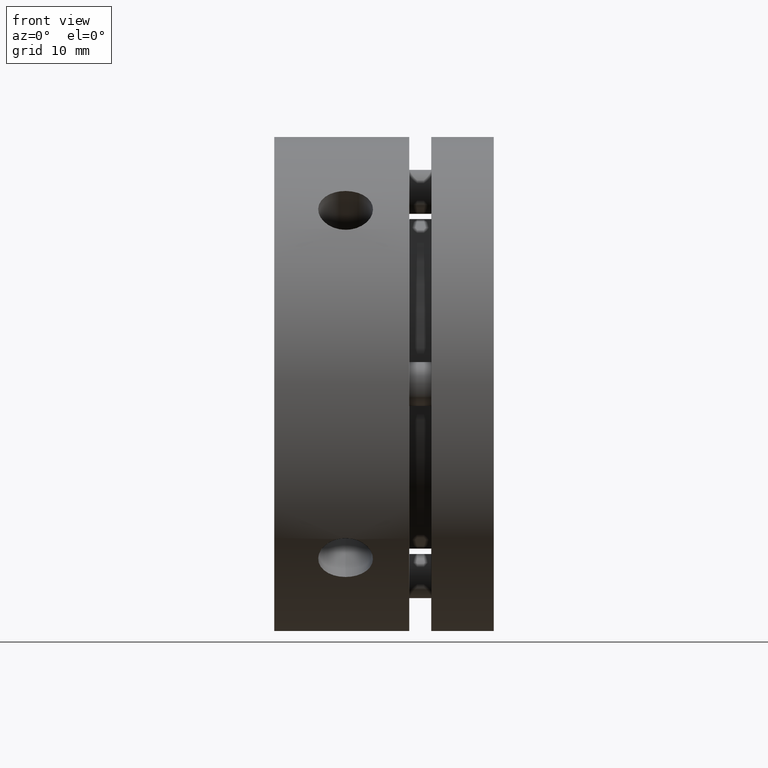
[diagram: clean part render]
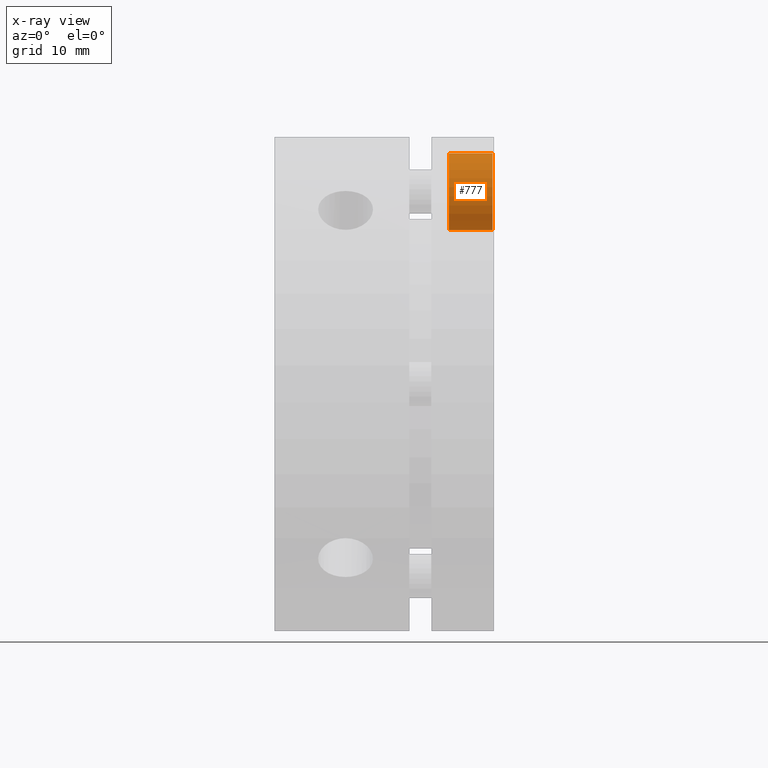
[diagram: x-ray — body ghosted, one internal face saturated and labeled with its STEP entity id]
A machine part, front view, then the same camera in x-ray: the body is ghosted and one INTERNAL B-rep face — a face not visible from any outside direction — is saturated and labeled: STEP entity #777.
In plain terms, the highlighted cylindrical surface (partial cylindrical patch) has radius 3.5 mm, axis along (-1, 0, -0).
Its self-contained STEP definition (entity closure, byte-faithful):
#139 = EDGE_LOOP ( 'NONE', ( #1162, #1163, #1164, #1165 ) ) ;
#448 = VERTEX_POINT ( 'NONE', #2378 ) ;
#572 = VERTEX_POINT ( 'NONE', #2501 ) ;
#577 = VERTEX_POINT ( 'NONE', #2506 ) ;
#578 = VERTEX_POINT ( 'NONE', #2507 ) ;
#777 = ADVANCED_FACE ( 'NONE', ( #3067 ), #3075, .T. ) ;
#913 = EDGE_CURVE ( 'NONE', #448, #572, #3229, .T. ) ;
#914 = EDGE_CURVE ( 'NONE', #448, #577, #3231, .T. ) ;
#915 = EDGE_CURVE ( 'NONE', #577, #578, #3233, .T. ) ;
#916 = EDGE_CURVE ( 'NONE', #572, #578, #3236, .T. ) ;
#1162 = ORIENTED_EDGE ( 'NONE', *, *, #913, .F. ) ;
#1163 = ORIENTED_EDGE ( 'NONE', *, *, #914, .T. ) ;
#1164 = ORIENTED_EDGE ( 'NONE', *, *, #915, .T. ) ;
#1165 = ORIENTED_EDGE ( 'NONE', *, *, #916, .F. ) ;
#1354 = AXIS2_PLACEMENT_3D ( 'NONE', #2704, #2702, #2700 ) ;
#1446 = AXIS2_PLACEMENT_3D ( 'NONE', #3388, #3389, #3390 ) ;
#1447 = AXIS2_PLACEMENT_3D ( 'NONE', #3392, #3393, #3394 ) ;
#2378 = CARTESIAN_POINT ( 'NONE',  ( 4.286263797015736600E-016, 4.000000000000000000, 3.500000000000000000 ) ) ;
#2501 = CARTESIAN_POINT ( 'NONE',  ( 0.0000000000000000000, 4.000000000000000000, -3.500000000000000000 ) ) ;
#2506 = CARTESIAN_POINT ( 'NONE',  ( 4.286263797015736600E-016, 0.0000000000000000000, 3.500000000000000000 ) ) ;
#2507 = CARTESIAN_POINT ( 'NONE',  ( 0.0000000000000000000, 0.0000000000000000000, -3.500000000000000000 ) ) ;
#2700 = DIRECTION ( 'NONE',  ( 0.0000000000000000000, 0.0000000000000000000, -1.000000000000000000 ) ) ;
#2702 = DIRECTION ( 'NONE',  ( -0.0000000000000000000, -1.000000000000000000, -0.0000000000000000000 ) ) ;
#2704 = CARTESIAN_POINT ( 'NONE',  ( 0.0000000000000000000, 4.000000000000000000, 0.0000000000000000000 ) ) ;
#3067 = FACE_OUTER_BOUND ( 'NONE', #139, .T. ) ;
#3075 = CYLINDRICAL_SURFACE ( 'NONE', #1354, 3.500000000000000000 ) ;
#3229 = CIRCLE ( 'NONE', #1446, 3.500000000000000000 ) ;
#3231 = LINE ( 'NONE', #3387, #3235 ) ;
#3233 = CIRCLE ( 'NONE', #1447, 3.500000000000000000 ) ;
#3235 = VECTOR ( 'NONE', #3385, 1000.000000000000000 ) ;
#3236 = LINE ( 'NONE', #3391, #3238 ) ;
#3238 = VECTOR ( 'NONE', #3386, 1000.000000000000000 ) ;
#3385 = DIRECTION ( 'NONE',  ( -0.0000000000000000000, -1.000000000000000000, -0.0000000000000000000 ) ) ;
#3386 = DIRECTION ( 'NONE',  ( -0.0000000000000000000, -1.000000000000000000, -0.0000000000000000000 ) ) ;
#3387 = CARTESIAN_POINT ( 'NONE',  ( 4.286263797015736600E-016, 4.000000000000000000, 3.500000000000000000 ) ) ;
#3388 = CARTESIAN_POINT ( 'NONE',  ( 0.0000000000000000000, 4.000000000000000000, 0.0000000000000000000 ) ) ;
#3389 = DIRECTION ( 'NONE',  ( 0.0000000000000000000, 1.000000000000000000, 0.0000000000000000000 ) ) ;
#3390 = DIRECTION ( 'NONE',  ( 0.0000000000000000000, 0.0000000000000000000, 1.000000000000000000 ) ) ;
#3391 = CARTESIAN_POINT ( 'NONE',  ( 0.0000000000000000000, 4.000000000000000000, -3.500000000000000000 ) ) ;
#3392 = CARTESIAN_POINT ( 'NONE',  ( 0.0000000000000000000, 0.0000000000000000000, 0.0000000000000000000 ) ) ;
#3393 = DIRECTION ( 'NONE',  ( 0.0000000000000000000, 1.000000000000000000, 0.0000000000000000000 ) ) ;
#3394 = DIRECTION ( 'NONE',  ( 0.0000000000000000000, 0.0000000000000000000, 1.000000000000000000 ) ) ;